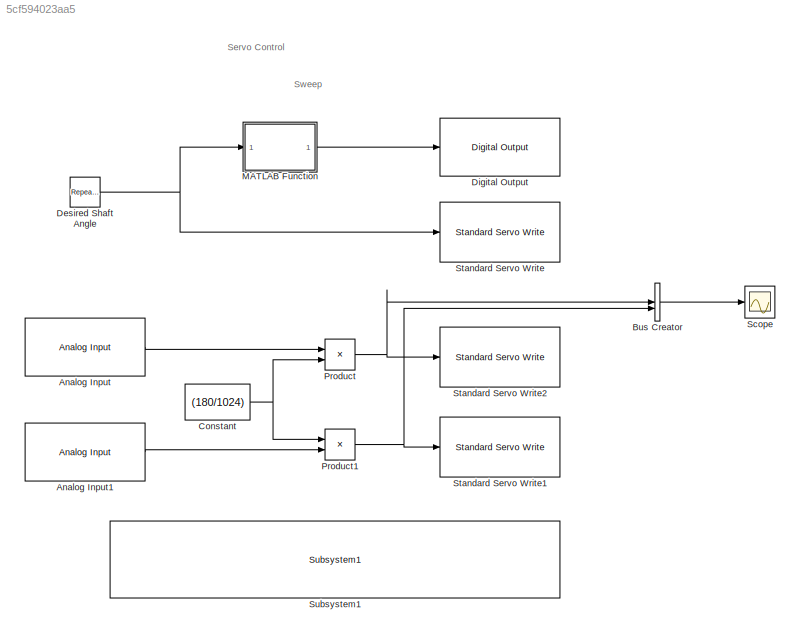
MODEL slx_5cf594023aa5
KIND model
CONFIG AbsTol = auto
CONFIG EnableMultiTasking = on
CONFIG FixedStep = auto
CONFIG MaxStep = auto
CONFIG MinStep = auto
CONFIG RelTol = 1e-3
CONFIG SampleTimeConstraint = Unconstrained
CONFIG SolverName = ode45
CONFIG StartTime = 0.0
CONFIG StopTime = 10.0
BLOCK [Reference] Analog Input  REF=arduinolib/Analog Input
  SourceBlock = arduinolib/Analog Input
  SourceType = Arduino Analog Input
BLOCK [Reference] Analog Input1  REF=arduinolib/Analog Input
  SourceBlock = arduinolib/Analog Input
  SourceType = Arduino Analog Input
BLOCK [BusCreator] Bus Creator
  DisplayOption = bar
  InheritFromInputs = on
  Inputs = 2
BLOCK [Constant] Constant
  Value = (180/1024)
BLOCK [Reference] Desired Shaft Angle  REF=simulink/Sources/Repeating
Sequence
Stair
  SourceBlock = simulink/Sources/Repeating\nSequence\nStair
  SourceType = Repeating Sequence Stair
BLOCK [Reference] Digital Output  REF=arduinolib/Digital Output
  SourceBlock = arduinolib/Digital Output
  SourceType = Arduino Digital Output
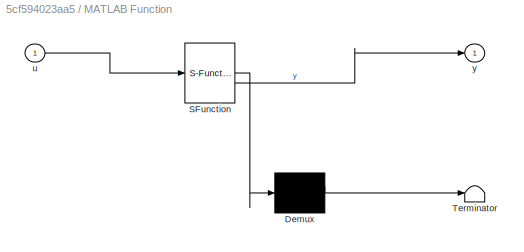
BLOCK [SubSystem] MATLAB Function
  ErrorFcn = Stateflow.Translate.translate
  LibrarySourceBlock = simulink/User-Defined\nFunctions/MATLAB Function
  PermitHierarchicalResolution = ExplicitOnly
  SFBlockType = MATLAB Function
  TreatAsAtomicUnit = on
BLOCK [Demux] MATLAB Function/ Demux 
  Outputs = 1
BLOCK [S-Function] MATLAB Function/ SFunction 
  EnableBusSupport = on
  FunctionName = sf_sfun
  PortCounts = [1 2]
  SFcnIsStateOwnerBlock = off
  SFunctionDeploymentMode = off
  Tag = Stateflow S-Function 2
BLOCK [Terminator] MATLAB Function/ Terminator 
BLOCK [Inport] MATLAB Function/u
BLOCK [Outport] MATLAB Function/y
BLOCK [Product] Product
BLOCK [Product] Product1
BLOCK [Scope] Scope
  Floating = off
  NumInputPorts = 1
  ScopeSpecificationString = Simulink.scopes.TimeScopeBlockCfg('CurrentConfiguration', extmgr.ConfigurationSet(extmgr.Configuration('Core','General UI',true),extmgr.Configuration('Core','Source UI',true),extmgr.Configuration('Sources','WiredSimulink',true),extmgr.Configuration('Visuals','Time Domain',true,'SerializedDisplays',{struct('MinYLimReal','-22.47803','MaxYLimReal','202.30225','YLabelReal','','MinYLimMag','0.00000','M...<+1449ch>
BLOCK [Reference] Standard Servo Write  REF=arduinolib/Standard Servo Write
  SourceBlock = arduinolib/Standard Servo Write
  SourceType = Arduino Standard Servo Write
BLOCK [Reference] Standard Servo Write1  REF=arduinolib/Standard Servo Write
  SourceBlock = arduinolib/Standard Servo Write
  SourceType = Arduino Standard Servo Write
BLOCK [Reference] Standard Servo Write2  REF=arduinolib/Standard Servo Write
  SourceBlock = arduinolib/Standard Servo Write
  SourceType = Arduino Standard Servo Write
BLOCK [Reference] Subsystem1  REF=realtime_examples_misc/Subsystem1
  SourceBlock = realtime_examples_misc/Subsystem1
ANNOTATION (root): Servo Control
ANNOTATION (root): Sweep
LINE Analog Input1:1 -> Product1:2
LINE Analog Input:1 -> Product:1
LINE Bus Creator:1 -> Scope:1
NET Constant:1 -> Product1:1, Product:2
NET Desired Shaft Angle:1 -> MATLAB Function:1, Standard Servo Write:1
LINE MATLAB Function:1 -> Digital Output:1
NET Product1:1 -> Bus Creator:2, Standard Servo Write1:1
NET Product:1 -> Bus Creator:1, Standard Servo Write2:1
note: NET lines group one-source signal fan-out (src -> all destinations, sorted); 1:1 wires keep LINE
CHART MATLAB Function states=1 transitions=1
  STATE_LABEL 'eML_blk_kernel()'
  STATE_LABEL 'SCRIPT:\nfunction y = fcn(u)\n\ny = u > 90;\n'
CHART  states=0 transitions=0
